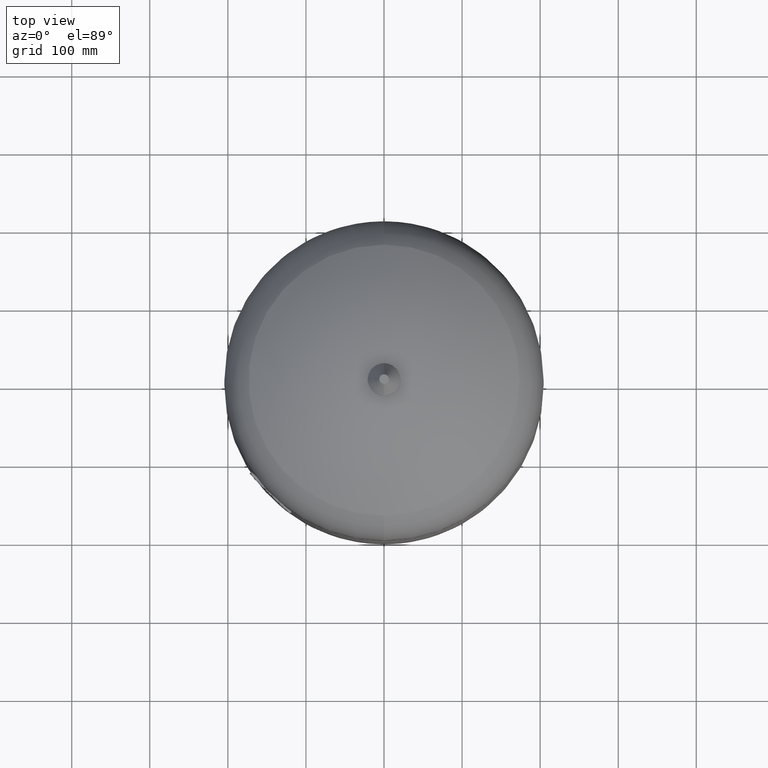
[diagram: clean part render]
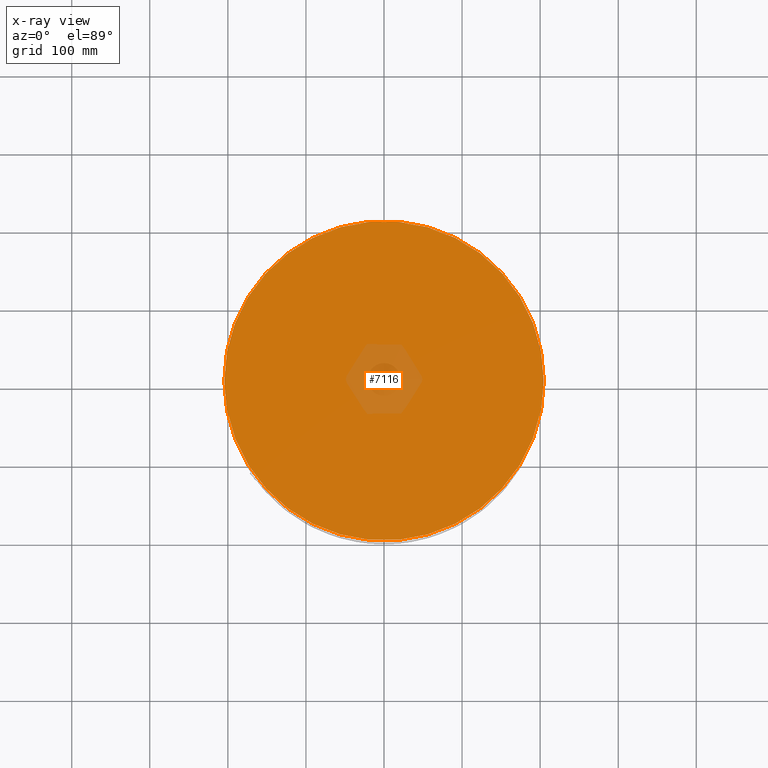
[diagram: x-ray — body ghosted, one internal face saturated and labeled with its STEP entity id]
A machine part, top view, then the same camera in x-ray: the body is ghosted and one INTERNAL B-rep face — a face not visible from any outside direction — is saturated and labeled: STEP entity #7116.
In plain terms, the highlighted planar face has unit normal (0, 0, -1).
Its self-contained STEP definition (entity closure, byte-faithful):
#6954=CARTESIAN_POINT('',(204.500000000000030,0.0,592.0));
#6955=VERTEX_POINT('',#6954);
#6964=CARTESIAN_POINT('',(-204.500000000000030,2.504320E-014,592.0));
#6965=VERTEX_POINT('',#6964);
#6966=CARTESIAN_POINT('',(-1.408344E-014,0.0,592.0));
#6967=DIRECTION('',(0.0,0.0,-1.0));
#6968=DIRECTION('',(1.0,0.0,0.0));
#6969=AXIS2_PLACEMENT_3D('',#6966,#6967,#6968);
#6970=CIRCLE('',#6969,204.500000000000030);
#6971=EDGE_CURVE('',#6965,#6955,#6970,.T.);
#7097=CARTESIAN_POINT('',(-1.408344E-014,0.0,592.0));
#7098=DIRECTION('',(0.0,0.0,-1.0));
#7099=DIRECTION('',(1.0,0.0,0.0));
#7100=AXIS2_PLACEMENT_3D('',#7097,#7098,#7099);
#7101=CIRCLE('',#7100,204.500000000000030);
#7102=EDGE_CURVE('',#6955,#6965,#7101,.T.);
#7107=CARTESIAN_POINT('',(102.250000000000000,-2.610492E-030,592.0));
#7108=DIRECTION('',(0.0,0.0,-1.0));
#7109=DIRECTION('',(0.0,-1.0,0.0));
#7110=AXIS2_PLACEMENT_3D('',#7107,#7108,#7109);
#7111=PLANE('',#7110);
#7112=ORIENTED_EDGE('',*,*,#7102,.T.);
#7113=ORIENTED_EDGE('',*,*,#6971,.T.);
#7114=EDGE_LOOP('',(#7112,#7113));
#7115=FACE_OUTER_BOUND('',#7114,.T.);
#7116=ADVANCED_FACE('',(#7115),#7111,.T.);